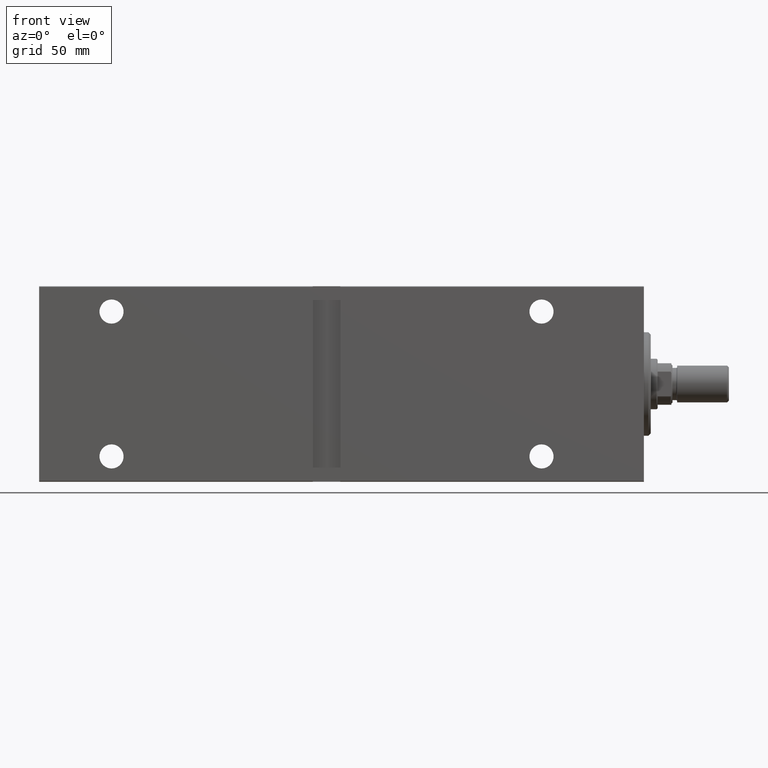
[diagram: clean part render]
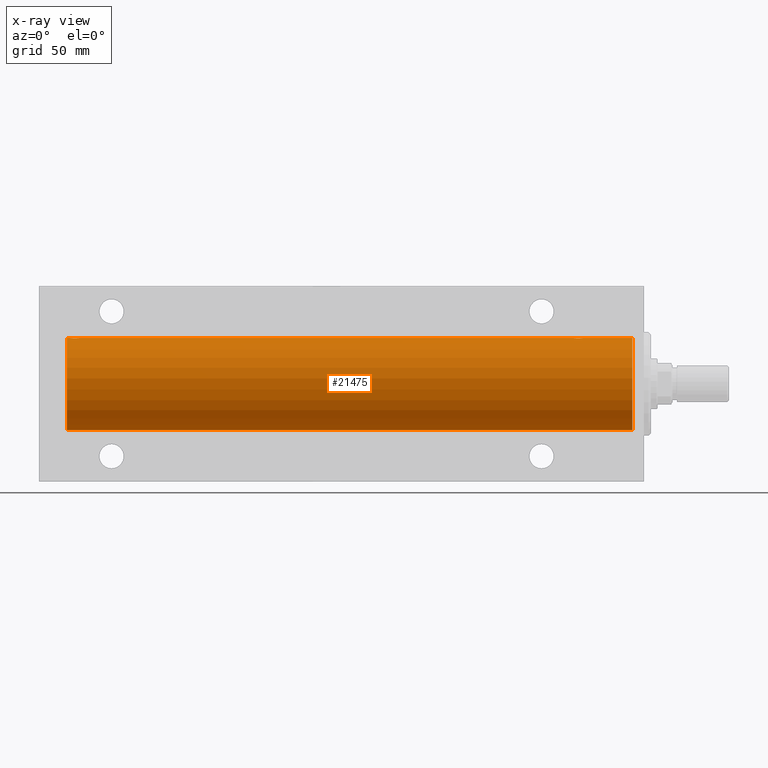
[diagram: x-ray — body ghosted, one internal face saturated and labeled with its STEP entity id]
A machine part, front view, then the same camera in x-ray: the body is ghosted and one INTERNAL B-rep face — a face not visible from any outside direction — is saturated and labeled: STEP entity #21475.
In plain terms, the highlighted cylindrical surface (partial cylindrical patch) has radius 20 mm, axis along (1, 0, -0).
Its self-contained STEP definition (entity closure, byte-faithful):
#1710 = AXIS2_PLACEMENT_3D ( 'NONE', #33004, #16224, #17305 ) ;
#2000 = CARTESIAN_POINT ( 'NONE',  ( 245.9099293231032561, 1.220099331833882195, 19.96304379627741454 ) ) ;
#2666 = CARTESIAN_POINT ( 'NONE',  ( 249.0061577038071903, 1.322305185229299962, 19.95645382900617903 ) ) ;
#2668 = CARTESIAN_POINT ( 'NONE',  ( 30.39765113166073363, 0.6450624715427786260, 19.98996196681220283 ) ) ;
#2892 = CARTESIAN_POINT ( 'NONE',  ( 27.17939834916165509, 1.507796451871717514, 19.94330239452387943 ) ) ;
#3126 = CARTESIAN_POINT ( 'NONE',  ( 26.50000000000000355, -1.552675476701256486E-23, 20.00000000000000000 ) ) ;
#3364 = B_SPLINE_CURVE_WITH_KNOTS ( 'NONE', 3,
 ( #26541, #22356, #29420, #5983, #36240, #19040, #26319, #32940, #2666, #9308, #22787, #16161, #35806, #19263, #19922, #26102, #36461, #39560, #42660, #19487, #32499, #43097, #2000, #15500, #19702, #43310, #29641, #25887, #12623, #12407 ),
 .UNSPECIFIED., .F., .F.,
 ( 4, 2, 2, 2, 2, 2, 2, 2, 2, 2, 2, 2, 2, 2, 4 ),
 ( 6.293884343480953716E-18, 0.0003910512220831412721, 0.0007821024441662760389, 0.001173153666249410806, 0.001564204888332545573, 0.002346307332498815540, 0.003128409776665085074, 0.003519460998748178207, 0.003910512220831271341, 0.004301563442914364474, 0.004692614664997457607, 0.005083665887080551608, 0.005474717109163644742, 0.005865768331246737875, 0.006256819553329831009 ),
 .UNSPECIFIED. ) ;
#3537 = VECTOR ( 'NONE', #24869, 1000.000000000000000 ) ;
#5763 = CARTESIAN_POINT ( 'NONE',  ( 28.23758582179998911, 1.987020435121065853, 19.90106552791689509 ) ) ;
#5983 = CARTESIAN_POINT ( 'NONE',  ( 249.4361522838332519, 0.5179893069484667878, 19.99370013622814923 ) ) ;
#5985 = CARTESIAN_POINT ( 'NONE',  ( 28.76180153897436753, 1.999905101582718503, 19.89975827978156531 ) ) ;
#6009 = VERTEX_POINT ( 'NONE', #3126 ) ;
#6204 = CARTESIAN_POINT ( 'NONE',  ( 27.28039724650257014, 1.590453176650906908, 19.93679350243183990 ) ) ;
#6472 = ORIENTED_EDGE ( 'NONE', *, *, #33912, .T. ) ;
#7062 = CARTESIAN_POINT ( 'NONE',  ( 251.0000000000000000, 0.000000000000000000, 20.00000000000000000 ) ) ;
#7911 = VERTEX_POINT ( 'NONE', #8144 ) ;
#8144 = CARTESIAN_POINT ( 'NONE',  ( 249.5000000000000000, 6.477051911798287571E-15, 20.00000000000000000 ) ) ;
#9035 = VERTEX_POINT ( 'NONE', #12902 ) ;
#9091 = CARTESIAN_POINT ( 'NONE',  ( 29.72950112230632769, 1.598854313793188320, 19.93684595445884256 ) ) ;
#9308 = CARTESIAN_POINT ( 'NONE',  ( 248.7295011223063455, 1.598854313793174775, 19.93684595445884966 ) ) ;
#9310 = CARTESIAN_POINT ( 'NONE',  ( 30.23576365127895116, 1.002099838626329120, 19.97517568592526516 ) ) ;
#9534 = CARTESIAN_POINT ( 'NONE',  ( 27.85628869360149551, 1.898109641280495419, 19.90978941500367583 ) ) ;
#9969 = CARTESIAN_POINT ( 'NONE',  ( 26.56426851132708222, 0.5196544277756653951, 19.99365919015135873 ) ) ;
#10817 = AXIS2_PLACEMENT_3D ( 'NONE', #11806, #32569, #25294 ) ;
#11391 = LINE ( 'NONE', #28402, #3537 ) ;
#11398 = CARTESIAN_POINT ( 'NONE',  ( 30.50000000000000000, -1.366442278252767519E-14, 20.00000000000000000 ) ) ;
#11806 = CARTESIAN_POINT ( 'NONE',  ( 251.0000000000000000, 0.000000000000000000, 0.000000000000000000 ) ) ;
#12407 = CARTESIAN_POINT ( 'NONE',  ( 245.5000000000000000, -1.553188236289650144E-23, 20.00000000000000000 ) ) ;
#12623 = CARTESIAN_POINT ( 'NONE',  ( 245.4999999999999716, 0.1305706983324437798, 20.00000000000000355 ) ) ;
#12902 = CARTESIAN_POINT ( 'NONE',  ( 5.000000000000004441, 2.449293598294706513E-15, -20.00000000000000000 ) ) ;
#13714 = CARTESIAN_POINT ( 'NONE',  ( 26.60210312641134678, 0.6443418861413038323, 19.98998539619404724 ) ) ;
#13935 = DIRECTION ( 'NONE',  ( 0.000000000000000000, 0.000000000000000000, 1.000000000000000000 ) ) ;
#14126 = DIRECTION ( 'NONE',  ( -1.000000000000000000, -0.000000000000000000, -0.000000000000000000 ) ) ;
#15500 = CARTESIAN_POINT ( 'NONE',  ( 245.7651054539801692, 1.003547732426790073, 19.97510079925437410 ) ) ;
#15728 = CARTESIAN_POINT ( 'NONE',  ( 30.48701494615325558, 0.2622407139811342436, 19.99868965376114716 ) ) ;
#15939 = LINE ( 'NONE', #42200, #40360 ) ;
#16161 = CARTESIAN_POINT ( 'NONE',  ( 248.0251390845500055, 1.947330458682946075, 19.90522393307485416 ) ) ;
#16224 = DIRECTION ( 'NONE',  ( -1.000000000000000000, 0.000000000000000000, 0.000000000000000000 ) ) ;
#16383 = CARTESIAN_POINT ( 'NONE',  ( 26.51308707988552982, 0.2631998640366412512, 19.99867931558985745 ) ) ;
#17035 = CARTESIAN_POINT ( 'NONE',  ( 26.70246098872837948, 0.8865903856744223877, 19.98070694681038972 ) ) ;
#17121 = ORIENTED_EDGE ( 'NONE', *, *, #39706, .T. ) ;
#17305 = DIRECTION ( 'NONE',  ( 0.000000000000000000, 0.000000000000000000, 1.000000000000000000 ) ) ;
#17670 = VERTEX_POINT ( 'NONE', #11398 ) ;
#18286 = EDGE_CURVE ( 'NONE', #38174, #7911, #15939, .T. ) ;
#18367 = DIRECTION ( 'NONE',  ( -1.000000000000000000, -0.000000000000000000, -0.000000000000000000 ) ) ;
#18425 = EDGE_CURVE ( 'NONE', #6009, #26898, #38182, .T. ) ;
#18491 = CARTESIAN_POINT ( 'NONE',  ( 245.5000000000000000, -1.553188236289650144E-23, 20.00000000000000000 ) ) ;
#18663 = CARTESIAN_POINT ( 'NONE',  ( 251.0000000000000000, 0.000000000000000000, 20.00000000000000000 ) ) ;
#18690 = ORIENTED_EDGE ( 'NONE', *, *, #21758, .T. ) ;
#19040 = CARTESIAN_POINT ( 'NONE',  ( 249.2972134305668703, 0.8872481584516723752, 19.98067755938510359 ) ) ;
#19042 = CARTESIAN_POINT ( 'NONE',  ( 30.49999999999993250, 0.1322335637814686382, 19.99999999999999645 ) ) ;
#19143 = EDGE_LOOP ( 'NONE', ( #43673, #36395, #27179, #34808, #17121, #18690, #24061, #6472 ) ) ;
#19263 = CARTESIAN_POINT ( 'NONE',  ( 247.3701881870929640, 2.000047251570877815, 19.89974399317115683 ) ) ;
#19266 = CARTESIAN_POINT ( 'NONE',  ( 27.61403810544161885, 1.797847595792754438, 19.91909332229799290 ) ) ;
#19372 = CIRCLE ( 'NONE', #1710, 20.00000000000000000 ) ;
#19487 = CARTESIAN_POINT ( 'NONE',  ( 246.2803972465025311, 1.590453176650897360, 19.93679350243184345 ) ) ;
#19489 = CARTESIAN_POINT ( 'NONE',  ( 27.98100525813888240, 1.935912154109689531, 19.90610216711450775 ) ) ;
#19702 = CARTESIAN_POINT ( 'NONE',  ( 245.7024609887283759, 0.8865903856744304923, 19.98070694681039328 ) ) ;
#19922 = CARTESIAN_POINT ( 'NONE',  ( 247.2375858217999678, 1.987020435121064965, 19.90106552791689154 ) ) ;
#19925 = CARTESIAN_POINT ( 'NONE',  ( 26.76510545398015850, 1.003547732426796957, 19.97510079925437765 ) ) ;
#21475 = ADVANCED_FACE ( 'NONE', ( #42060 ), #29050, .F. ) ;
#21758 = EDGE_CURVE ( 'NONE', #17670, #6009, #39950, .T. ) ;
#22356 = CARTESIAN_POINT ( 'NONE',  ( 249.5000000000000000, 0.1322335637814730791, 19.99999999999999289 ) ) ;
#22533 = CARTESIAN_POINT ( 'NONE',  ( 5.000000000000004441, 0.000000000000000000, 20.00000000000000000 ) ) ;
#22589 = CARTESIAN_POINT ( 'NONE',  ( 251.0000000000000000, 2.449293598294706513E-15, -20.00000000000000000 ) ) ;
#22787 = CARTESIAN_POINT ( 'NONE',  ( 248.5064575907383926, 1.747830109444734381, 19.92373272380677207 ) ) ;
#23011 = CARTESIAN_POINT ( 'NONE',  ( 30.50000000000000000, -1.366442278252767519E-14, 20.00000000000000000 ) ) ;
#24061 = ORIENTED_EDGE ( 'NONE', *, *, #18425, .T. ) ;
#24307 = DIRECTION ( 'NONE',  ( -1.000000000000000000, -0.000000000000000000, -0.000000000000000000 ) ) ;
#24869 = DIRECTION ( 'NONE',  ( -1.000000000000000000, -0.000000000000000000, -0.000000000000000000 ) ) ;
#24891 = EDGE_CURVE ( 'NONE', #38174, #27449, #19372, .T. ) ;
#25294 = DIRECTION ( 'NONE',  ( 0.000000000000000000, 0.000000000000000000, 1.000000000000000000 ) ) ;
#25887 = CARTESIAN_POINT ( 'NONE',  ( 245.5130870798855369, 0.2631998640366418618, 19.99867931558985745 ) ) ;
#26102 = CARTESIAN_POINT ( 'NONE',  ( 246.9810052581388788, 1.935912154109689753, 19.90610216711451130 ) ) ;
#26319 = CARTESIAN_POINT ( 'NONE',  ( 249.2357636512790009, 1.002099838626311801, 19.97517568592526160 ) ) ;
#26541 = CARTESIAN_POINT ( 'NONE',  ( 249.5000000000000000, 6.477051911798287571E-15, 20.00000000000000000 ) ) ;
#26898 = VERTEX_POINT ( 'NONE', #22533 ) ;
#27179 = ORIENTED_EDGE ( 'NONE', *, *, #18286, .T. ) ;
#27449 = VERTEX_POINT ( 'NONE', #22589 ) ;
#28402 = CARTESIAN_POINT ( 'NONE',  ( 251.0000000000000000, 2.449293598294706513E-15, -20.00000000000000000 ) ) ;
#28755 = CARTESIAN_POINT ( 'NONE',  ( 28.37018818709292134, 2.000047251570880480, 19.89974399317116038 ) ) ;
#29050 = CYLINDRICAL_SURFACE ( 'NONE', #10817, 20.00000000000000000 ) ;
#29200 = CARTESIAN_POINT ( 'NONE',  ( 30.43615228383326610, 0.5179893069484811097, 19.99370013622814213 ) ) ;
#29420 = CARTESIAN_POINT ( 'NONE',  ( 249.4870149461532662, 0.2622407139811160914, 19.99868965376114716 ) ) ;
#29422 = CARTESIAN_POINT ( 'NONE',  ( 27.49702773215045681, 1.735228749583822117, 19.92471474456649005 ) ) ;
#29641 = CARTESIAN_POINT ( 'NONE',  ( 245.5642685113271000, 0.5196544277756655061, 19.99365919015135873 ) ) ;
#29860 = CARTESIAN_POINT ( 'NONE',  ( 26.50000000000000355, -1.552675476701256486E-23, 20.00000000000000000 ) ) ;
#31523 = CIRCLE ( 'NONE', #43551, 20.00000000000000000 ) ;
#31920 = VERTEX_POINT ( 'NONE', #18491 ) ;
#32499 = CARTESIAN_POINT ( 'NONE',  ( 246.1793983491616871, 1.507796451871725285, 19.94330239452387588 ) ) ;
#32569 = DIRECTION ( 'NONE',  ( -1.000000000000000000, -0.000000000000000000, -0.000000000000000000 ) ) ;
#32940 = CARTESIAN_POINT ( 'NONE',  ( 249.0905973345755342, 1.219458756546266676, 19.96308513509966431 ) ) ;
#33004 = CARTESIAN_POINT ( 'NONE',  ( 251.0000000000000000, 0.000000000000000000, 0.000000000000000000 ) ) ;
#33114 = VECTOR ( 'NONE', #24307, 1000.000000000000000 ) ;
#33819 = DIRECTION ( 'NONE',  ( -1.000000000000000000, 0.000000000000000000, 0.000000000000000000 ) ) ;
#33912 = EDGE_CURVE ( 'NONE', #26898, #9035, #31523, .T. ) ;
#34239 = CARTESIAN_POINT ( 'NONE',  ( 26.50000000000001421, 0.1305706983324422532, 20.00000000000000355 ) ) ;
#34808 = ORIENTED_EDGE ( 'NONE', *, *, #38681, .T. ) ;
#35427 = LINE ( 'NONE', #18663, #33114 ) ;
#35806 = CARTESIAN_POINT ( 'NONE',  ( 247.7618015389742823, 1.999905101582714284, 19.89975827978156175 ) ) ;
#36026 = CARTESIAN_POINT ( 'NONE',  ( 29.50645759073828600, 1.747830109444744595, 19.92373272380676852 ) ) ;
#36240 = CARTESIAN_POINT ( 'NONE',  ( 249.3976511316607514, 0.6450624715427595302, 19.98996196681220994 ) ) ;
#36245 = CARTESIAN_POINT ( 'NONE',  ( 30.29721343056695204, 0.8872481584516898057, 19.98067755938509293 ) ) ;
#36395 = ORIENTED_EDGE ( 'NONE', *, *, #24891, .F. ) ;
#36461 = CARTESIAN_POINT ( 'NONE',  ( 246.8562886936015275, 1.898109641280497639, 19.90978941500366872 ) ) ;
#36679 = CARTESIAN_POINT ( 'NONE',  ( 26.90992932310325969, 1.220099331833888634, 19.96304379627741099 ) ) ;
#37549 = VECTOR ( 'NONE', #14126, 1000.000000000000000 ) ;
#38174 = VERTEX_POINT ( 'NONE', #43479 ) ;
#38182 = LINE ( 'NONE', #7062, #37549 ) ;
#38681 = EDGE_CURVE ( 'NONE', #7911, #31920, #3364, .T. ) ;
#39560 = CARTESIAN_POINT ( 'NONE',  ( 246.6140381054416935, 1.797847595792758879, 19.91909332229798224 ) ) ;
#39706 = EDGE_CURVE ( 'NONE', #31920, #17670, #35427, .T. ) ;
#39778 = CARTESIAN_POINT ( 'NONE',  ( 29.02513908454997704, 1.947330458682951404, 19.90522393307485061 ) ) ;
#39950 = B_SPLINE_CURVE_WITH_KNOTS ( 'NONE', 3,
 ( #23011, #19042, #15728, #29200, #2668, #36245, #9310, #43100, #42662, #9091, #36026, #39778, #5985, #28755, #5763, #19489, #9534, #19266, #29422, #6204, #2892, #39998, #36679, #19925, #17035, #13714, #9969, #16383, #34239, #29860 ),
 .UNSPECIFIED., .F., .F.,
 ( 4, 2, 2, 2, 2, 2, 2, 2, 2, 2, 2, 2, 2, 2, 4 ),
 ( 2.326943606913493903E-17, 0.0003910512220831276653, 0.0007821024441662321287, 0.001173153666249336213, 0.001564204888332440839, 0.002346307332498649440, 0.003128409776664858692, 0.003519460998747968306, 0.003910512220831077919, 0.004301563442914186665, 0.004692614664997295411, 0.005083665887080405892, 0.005474717109163514638, 0.005865768331246624251, 0.006256819553329733864 ),
 .UNSPECIFIED. ) ;
#39998 = CARTESIAN_POINT ( 'NONE',  ( 26.99261358456011806, 1.321069663197660171, 19.95654117037012298 ) ) ;
#40360 = VECTOR ( 'NONE', #18367, 1000.000000000000000 ) ;
#40861 = CARTESIAN_POINT ( 'NONE',  ( 5.000000000000004441, 0.000000000000000000, 0.000000000000000000 ) ) ;
#42060 = FACE_OUTER_BOUND ( 'NONE', #19143, .T. ) ;
#42086 = EDGE_CURVE ( 'NONE', #27449, #9035, #11391, .T. ) ;
#42200 = CARTESIAN_POINT ( 'NONE',  ( 251.0000000000000000, 0.000000000000000000, 20.00000000000000000 ) ) ;
#42660 = CARTESIAN_POINT ( 'NONE',  ( 246.4970277321504568, 1.735228749583813901, 19.92471474456649005 ) ) ;
#42662 = CARTESIAN_POINT ( 'NONE',  ( 30.00615770380712277, 1.322305185229317281, 19.95645382900617548 ) ) ;
#43097 = CARTESIAN_POINT ( 'NONE',  ( 245.9926135845601323, 1.321069663197669275, 19.95654117037011233 ) ) ;
#43100 = CARTESIAN_POINT ( 'NONE',  ( 30.09059733457551289, 1.219458756546281775, 19.96308513509966787 ) ) ;
#43310 = CARTESIAN_POINT ( 'NONE',  ( 245.6021031264113503, 0.6443418861413122700, 19.98998539619404369 ) ) ;
#43479 = CARTESIAN_POINT ( 'NONE',  ( 251.0000000000000000, 0.000000000000000000, 20.00000000000000000 ) ) ;
#43551 = AXIS2_PLACEMENT_3D ( 'NONE', #40861, #33819, #13935 ) ;
#43673 = ORIENTED_EDGE ( 'NONE', *, *, #42086, .F. ) ;